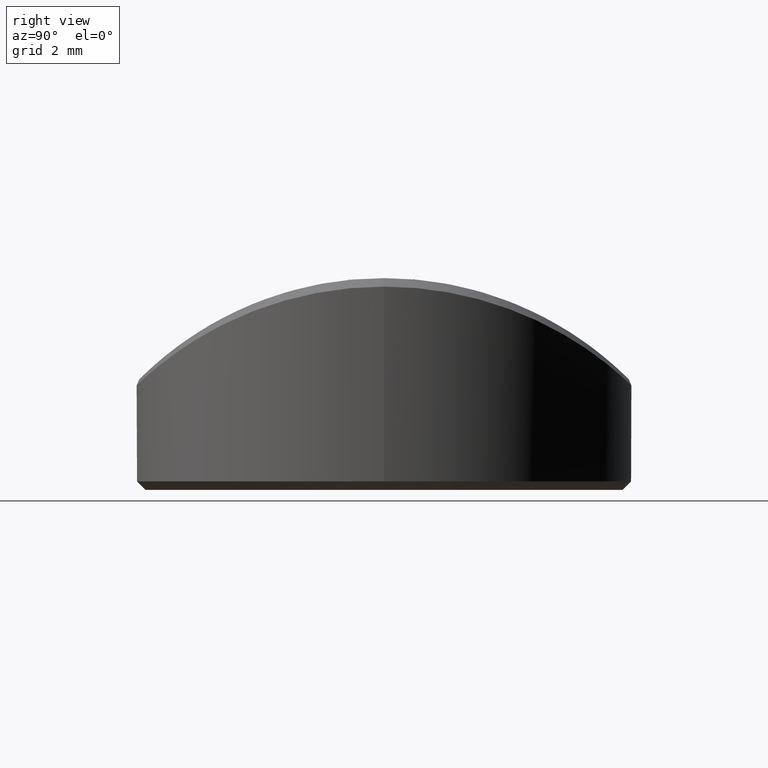
[diagram: clean part render]
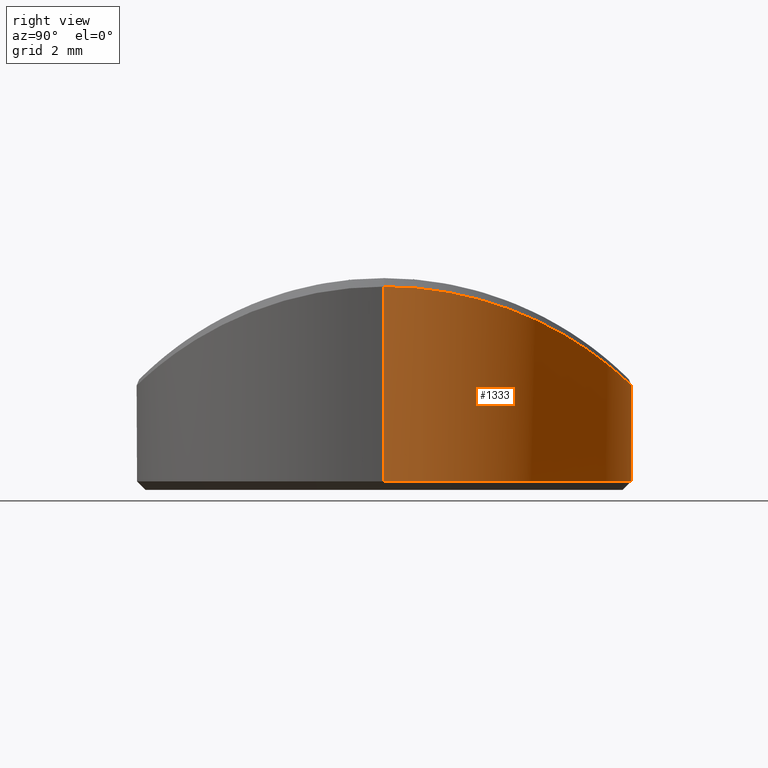
[diagram: same view with one face highlighted and labeled with its STEP entity id]
A machine part, right view. The second image highlights one B-rep face of the part: STEP entity #1333.
In plain terms, the highlighted cylindrical surface (partial cylindrical patch) has radius 5.85 mm, axis along (-0, -0, -1).
Its self-contained STEP definition (entity closure, byte-faithful):
#8 = CARTESIAN_POINT ( 'NONE',  ( 4.108660308784225279, 4.164305027091335987, 3.713260437684034354 ) ) ;
#18 = CARTESIAN_POINT ( 'NONE',  ( 2.385246232320713755, 5.342002398133206320, 2.909686076064244453 ) ) ;
#21 = CARTESIAN_POINT ( 'NONE',  ( 0.000000000000000000, 0.000000000000000000, 0.1999999999999979294 ) ) ;
#31 = CARTESIAN_POINT ( 'NONE',  ( 4.277854823817001773, 3.990310385866837173, 3.808524879976359578 ) ) ;
#35 = DIRECTION ( 'NONE',  ( -0.000000000000000000, -0.000000000000000000, 1.000000000000000000 ) ) ;
#48 = CARTESIAN_POINT ( 'NONE',  ( -4.641185128680093364, 3.561447896373801658, 4.021348622537261441 ) ) ;
#58 = VERTEX_POINT ( 'NONE', #418 ) ;
#59 = CARTESIAN_POINT ( 'NONE',  ( 4.292698634138595537, 3.974337341705630244, 3.817003397133048814 ) ) ;
#62 = CARTESIAN_POINT ( 'NONE',  ( -4.724908983394943363, 3.449390400636082710, 4.071937503099142930 ) ) ;
#71 = CARTESIAN_POINT ( 'NONE',  ( 5.607999183966873247, 1.668178683712018939, 4.636352799101314481 ) ) ;
#75 = CARTESIAN_POINT ( 'NONE',  ( -4.149482428075718765, 4.123658253869851187, 3.736007229230680515 ) ) ;
#96 = CARTESIAN_POINT ( 'NONE',  ( -3.355908233739689273, 4.791754026987987913, 3.322308382126743176 ) ) ;
#107 = CARTESIAN_POINT ( 'NONE',  ( 0.7859525969102898468, 5.797177311696103175, 2.508445793207736418 ) ) ;
#110 = DIRECTION ( 'NONE',  ( -0.000000000000000000, -0.000000000000000000, -1.000000000000000000 ) ) ;
#121 = CARTESIAN_POINT ( 'NONE',  ( -2.992124008550391956, 5.027132031130014056, 3.154572236264746365 ) ) ;
#125 = FACE_OUTER_BOUND ( 'NONE', #1765, .T. ) ;
#134 = CARTESIAN_POINT ( 'NONE',  ( -1.700589119400091942, 5.597579381643957852, 2.691804708332701690 ) ) ;
#146 = CARTESIAN_POINT ( 'NONE',  ( -0.2042860984693528892, 5.849775641191929054, 2.458040373325443007 ) ) ;
#159 = CARTESIAN_POINT ( 'NONE',  ( 0.1915272970174809464, 5.847703814411178591, 2.460045959913346625 ) ) ;
#170 = CARTESIAN_POINT ( 'NONE',  ( 3.880547474902559024, 4.377668838715481847, 3.588936441197635663 ) ) ;
#173 = CARTESIAN_POINT ( 'NONE',  ( -5.850000000000001421, 0.1979065751714237098, 4.800000020053045269 ) ) ;
#182 = CARTESIAN_POINT ( 'NONE',  ( 2.258553373923917196, 5.396476325263996898, 2.864683651766862571 ) ) ;
#185 = CARTESIAN_POINT ( 'NONE',  ( -5.174712363868878562, 2.728635216138851405, 4.352660986688395184 ) ) ;
#197 = CARTESIAN_POINT ( 'NONE',  ( 1.967192620522354440, 5.509377960854479284, 2.769013051855162555 ) ) ;
#200 = CARTESIAN_POINT ( 'NONE',  ( -5.037970731707566152, 2.974943929475019289, 4.265670487847846637 ) ) ;
#206 = CARTESIAN_POINT ( 'NONE',  ( 2.493163070542220972, 5.292183682870229333, 2.950014558453224023 ) ) ;
#208 = CARTESIAN_POINT ( 'NONE',  ( 5.849994100430989441, 0.008308123893104524954, 4.799995968718044459 ) ) ;
#217 = CARTESIAN_POINT ( 'NONE',  ( 3.514693720458985204, 4.676616353762907075, 3.399999438822885356 ) ) ;
#220 = CARTESIAN_POINT ( 'NONE',  ( -5.445365740286342238, 2.138847274481760596, 4.528429422769545631 ) ) ;
#231 = CARTESIAN_POINT ( 'NONE',  ( 5.414727395307071589, 2.216508239495949439, 4.508259288151671207 ) ) ;
#234 = CARTESIAN_POINT ( 'NONE',  ( -3.499138554421866498, 4.688128986937893927, 3.392309389072373893 ) ) ;
#244 = VERTEX_POINT ( 'NONE', #1163 ) ;
#245 = CARTESIAN_POINT ( 'NONE',  ( 5.338461672759514443, 2.392462048441405198, 4.458429455668960983 ) ) ;
#248 = CARTESIAN_POINT ( 'NONE',  ( -4.009158932106791084, 4.260244011897984961, 3.658421650888494803 ) ) ;
#259 = CARTESIAN_POINT ( 'NONE',  ( 5.102490041496828610, 2.861402714286819471, 4.306599639812659142 ) ) ;
#261 = CARTESIAN_POINT ( 'NONE',  ( -4.766340613907120272, 3.392391811443428828, 4.097120868748519662 ) ) ;
#270 = CARTESIAN_POINT ( 'NONE',  ( -4.805933677647351132, 3.335800393674567488, 4.121377632817983638 ) ) ;
#282 = CARTESIAN_POINT ( 'NONE',  ( -3.518896577279808646, 4.673333073556473316, 3.402128751323021394 ) ) ;
#289 = B_SPLINE_CURVE_WITH_KNOTS ( 'NONE', 3,
 ( #2235, #173, #565, #1996, #923, #1628, #354, #1473, #554, #1090, #2208, #1818, #742, #1295, #1077, #2032, #220, #391, #1116, #946, #1675, #1833, #901, #714, #185, #912, #1284, #377, #200, #416, #1157, #1727, #2070, #1687, #270, #261, #62, #613, #1328, #48, #2259, #784, #429, #1913, #1715, #2105, #974, #824, #1143, #1700, #635, #623, #1552, #75, #1542, #2081, #442, #996, #1526, #248, #1365, #797, #1889, #1355, #1342, #1169, #1873, #1180, #1901, #2282, #1513, #463, #813, #962, #1192, #1739, #1925, #987, #2272, #282, #2095, #234, #453, #2246, #1005, #96, #835, #1562, #589, #1316, #2057, #341, #1969, #1979, #2293, #2335, #121, #509, #847, #1400, #1062, #2315, #1423, #1210, #475, #857, #1943, #688, #1051, #294, #887, #865, #315, #1201, #1246, #1934, #328, #1014, #2140, #1792, #646, #1234, #134, #677, #520, #1591, #1390, #1781, #2164, #873, #485, #2129, #498, #146, #1747, #159, #1221, #1379, #1603, #2117, #107, #1759, #668, #2304, #1571, #1581, #657, #302, #1027, #2324, #1039, #1957, #1770, #1410, #2152, #352, #1280, #197, #400, #726, #1074, #1458, #1292, #182, #1268, #18, #1660, #206, #909, #752, #374, #1828, #575, #2029, #1854, #1113, #2373, #387, #1842, #2359, #1815, #931, #921, #1483, #2217, #1470, #1302, #2018, #2041, #1125, #711, #2194, #1803, #899, #217, #2347, #1433, #700, #1258, #2205, #2173, #362, #530, #562, #2183, #1993, #170, #1626, #1099, #1446, #540, #2005, #1087, #551, #1647, #8, #739, #1908, #1885, #1711, #31, #59, #2268, #631, #1510, #765, #1548, #1361, #619, #2101, #943, #992, #1154, #1538, #1869, #794, #459, #1723, #1351, #1684, #1523, #1188, #2232, #259, #1671, #610, #1314, #1496, #1167, #245, #1140, #1898, #231, #1339, #2079, #1921, #984, #2090, #71, #809, #2278, #958, #2256, #586, #1176 ),
 .UNSPECIFIED., .F., .F.,
 ( 4, 2, 1, 2, 2, 1, 1, 2, 2, 1, 1, 2, 2, 2, 1, 2, 2, 2, 1, 2, 2, 1, 2, 2, 1, 2, 2, 1, 1, 2, 2, 1, 1, 1, 2, 2, 2, 1, 1, 2, 2, 1, 2, 2, 1, 2, 2, 2, 1, 1, 2, 2, 2, 1, 2, 2, 1, 1, 2, 2, 1, 1, 2, 2, 1, 2, 2, 1, 2, 2, 1, 2, 2, 1, 2, 2, 2, 2, 2, 2, 2, 2, 2, 2, 2, 2, 2, 2, 2, 2, 2, 2, 1, 2, 2, 1, 2, 2, 1, 2, 2, 1, 2, 2, 1, 1, 2, 2, 1, 1, 2, 2, 2, 1, 1, 2, 2, 2, 1, 1, 2, 2, 2, 1, 2, 2, 2, 1, 1, 2, 2, 1, 1, 2, 2, 1, 2, 2, 1, 2, 2, 1, 2, 2, 2, 1, 2, 2, 2, 1, 2, 2, 1, 1, 2, 2, 2, 2, 4 ),
 ( 0.000000000000000000, 0.01562500000000116920, 0.02343750000000174860, 0.02734375000000204003, 0.03125000000000232453, 0.03906250000000289352, 0.04296875000000317107, 0.04492187500000330985, 0.04687500000000344863, 0.05468750000000395517, 0.05859375000000419803, 0.06054687500000433681, 0.06250000000000446865, 0.07031250000000502376, 0.07421875000000525968, 0.07617187500000539846, 0.07812500000000552336, 0.08593750000000600908, 0.08984375000000627276, 0.09179687500000641154, 0.09375000000000653644, 0.09765625000000684175, 0.09960937500000695277, 0.1015625000000070777, 0.1054687500000073275, 0.1074218750000074385, 0.1093750000000075634, 0.1132812500000077438, 0.1152343750000078271, 0.1162109375000078687, 0.1171875000000078965, 0.1210937500000079242, 0.1230468750000079520, 0.1240234375000079797, 0.1245117187500079797, 0.1250000000000079936, 0.1289062500000080214, 0.1308593750000080214, 0.1318359375000080214, 0.1323242187500080214, 0.1328125000000079936, 0.1347656250000078548, 0.1357421875000077993, 0.1367187500000077438, 0.1386718750000076605, 0.1396484375000076050, 0.1406250000000075773, 0.1445312500000073830, 0.1464843750000072442, 0.1474609375000071887, 0.1479492187500071332, 0.1484375000000070777, 0.1523437500000068001, 0.1542968750000066336, 0.1552734375000065781, 0.1562500000000064948, 0.1601562500000061617, 0.1621093750000059952, 0.1630859375000059119, 0.1640625000000058009, 0.1679687500000055511, 0.1699218750000054123, 0.1708984375000053568, 0.1718750000000052736, 0.1757812500000051625, 0.1777343750000051070, 0.1796875000000050515, 0.1835937500000049960, 0.1855468750000049127, 0.1875000000000048295, 0.1914062500000046629, 0.1933593750000046074, 0.1953125000000045797, 0.1992187500000044409, 0.2011718750000043854, 0.2031250000000043576, 0.2070312500000042188, 0.2109375000000041078, 0.2148437500000039690, 0.2187500000000038580, 0.2343750000000032752, 0.2500000000000026645, 0.2578125000000024425, 0.2656250000000021094, 0.2695312500000019429, 0.2734375000000018319, 0.2773437500000016653, 0.2812500000000014988, 0.2851562500000013323, 0.2890625000000012212, 0.2929687500000010547, 0.2968750000000008882, 0.3007812500000007216, 0.3027343750000006661, 0.3046875000000006106, 0.3085937500000004441, 0.3105468750000003331, 0.3125000000000001665, 0.3164062499999998890, 0.3183593749999997224, 0.3203124999999996114, 0.3242187499999993339, 0.3261718749999992228, 0.3281249999999990563, 0.3320312499999988343, 0.3339843749999986677, 0.3349609374999986122, 0.3359374999999985012, 0.3398437499999981681, 0.3417968749999980016, 0.3427734374999978906, 0.3437499999999977796, 0.3476562499999975575, 0.3496093749999974465, 0.3505859374999974465, 0.3510742187499973910, 0.3515624999999973910, 0.3554687499999971689, 0.3574218749999971134, 0.3583984374999970579, 0.3588867187499970579, 0.3593749999999970024, 0.3632812499999970579, 0.3652343749999970024, 0.3662109374999970579, 0.3671874999999970579, 0.3710937499999970579, 0.3730468749999970579, 0.3740234374999970024, 0.3745117187499970024, 0.3749999999999969469, 0.3789062499999970024, 0.3808593749999969469, 0.3818359374999969469, 0.3828124999999968914, 0.3867187499999969469, 0.3886718749999970024, 0.3906249999999970579, 0.3945312499999971134, 0.3964843749999970579, 0.3984374999999970579, 0.4023437499999970579, 0.4042968749999971134, 0.4062499999999971689, 0.4140624999999972800, 0.4179687499999973355, 0.4199218749999973910, 0.4218749999999974465, 0.4296874999999976130, 0.4335937499999977240, 0.4355468749999978351, 0.4374999999999979461, 0.4453124999999981681, 0.4492187499999983347, 0.4511718749999983902, 0.4531249999999985012, 0.4609374999999987232, 0.4687499999999990008, 0.5000000000000000000 ),
 .UNSPECIFIED. ) ;
#294 = CARTESIAN_POINT ( 'NONE',  ( -2.367909789877626903, 5.349396769338415680, 2.903558326850978144 ) ) ;
#302 = CARTESIAN_POINT ( 'NONE',  ( 1.270178043569939907, 5.710649705903003692, 2.589440278912006566 ) ) ;
#304 = VECTOR ( 'NONE', #110, 1000.000000000000000 ) ;
#315 = CARTESIAN_POINT ( 'NONE',  ( -2.238142779689996864, 5.405143694360121209, 2.857499906197123796 ) ) ;
#328 = CARTESIAN_POINT ( 'NONE',  ( -2.041159729408877688, 5.482404539894076834, 2.792189951830281291 ) ) ;
#341 = CARTESIAN_POINT ( 'NONE',  ( -3.166305068345255602, 4.919420037969555182, 3.232947271467960348 ) ) ;
#352 = CARTESIAN_POINT ( 'NONE',  ( 1.852630553815709069, 5.549264105393111990, 2.734416956072977190 ) ) ;
#354 = CARTESIAN_POINT ( 'NONE',  ( -5.749070987448257064, 1.083120220196605699, 4.731328615649891489 ) ) ;
#362 = CARTESIAN_POINT ( 'NONE',  ( 3.700040238052300090, 4.531251011624844338, 3.494071232220225198 ) ) ;
#374 = CARTESIAN_POINT ( 'NONE',  ( 2.638567562701895852, 5.221520374164146716, 3.006316252501083586 ) ) ;
#377 = CARTESIAN_POINT ( 'NONE',  ( -5.084452674447749843, 2.894668681140734723, 4.295090895718870705 ) ) ;
#387 = CARTESIAN_POINT ( 'NONE',  ( 2.985148355988853641, 5.031056767375082117, 3.151595296041863392 ) ) ;
#391 = CARTESIAN_POINT ( 'NONE',  ( -5.417824337821196323, 2.206871201970566965, 4.510337176758723920 ) ) ;
#400 = CARTESIAN_POINT ( 'NONE',  ( 1.991478015453728601, 5.500641401580073087, 2.776541590890383659 ) ) ;
#416 = CARTESIAN_POINT ( 'NONE',  ( -4.963889419142518911, 3.095890332972166092, 4.219214475236194417 ) ) ;
#418 = CARTESIAN_POINT ( 'NONE',  ( 5.849999999999999645, 7.164183775012015436E-16, 0.1999999999999979294 ) ) ;
#426 = ORIENTED_EDGE ( 'NONE', *, *, #1085, .T. ) ;
#429 = CARTESIAN_POINT ( 'NONE',  ( -4.525538455941270577, 3.707095868551213869, 3.952436066602554199 ) ) ;
#442 = CARTESIAN_POINT ( 'NONE',  ( -4.122525601592142763, 4.150579220939602187, 3.720971565749842114 ) ) ;
#453 = CARTESIAN_POINT ( 'NONE',  ( -3.496459238728092611, 4.690129234442699691, 3.390979754978672212 ) ) ;
#459 = CARTESIAN_POINT ( 'NONE',  ( 4.800533027938688413, 3.343338700104062422, 4.118083086083847100 ) ) ;
#463 = CARTESIAN_POINT ( 'NONE',  ( -3.770137706932647159, 4.473196235276285293, 3.530509703383662767 ) ) ;
#475 = CARTESIAN_POINT ( 'NONE',  ( -2.623522161279021159, 5.228782137833787758, 3.000511269317742258 ) ) ;
#485 = CARTESIAN_POINT ( 'NONE',  ( -0.9884755304512253815, 5.769356773961141549, 2.534990746851388810 ) ) ;
#488 = LINE ( 'NONE', #1749, #304 ) ;
#498 = CARTESIAN_POINT ( 'NONE',  ( -0.4006717094098667942, 5.839629473870818543, 2.467896926421356607 ) ) ;
#509 = CARTESIAN_POINT ( 'NONE',  ( -2.930704423171006656, 5.063320948246997411, 3.127691112935433004 ) ) ;
#520 = CARTESIAN_POINT ( 'NONE',  ( -1.561445824873080923, 5.637970051799042537, 2.655678913057720969 ) ) ;
#530 = CARTESIAN_POINT ( 'NONE',  ( 3.740352206442948635, 4.498267328586126546, 3.514917748246081164 ) ) ;
#540 = CARTESIAN_POINT ( 'NONE',  ( 3.989716235322790627, 4.278642813904538933, 3.647776917371431171 ) ) ;
#542 = CARTESIAN_POINT ( 'NONE',  ( 5.849999999999999645, 0.001384732242605513650, 4.800000032874744527 ) ) ;
#551 = CARTESIAN_POINT ( 'NONE',  ( 4.090418222519025981, 4.182244113535948493, 3.703137407503230616 ) ) ;
#554 = CARTESIAN_POINT ( 'NONE',  ( -5.709933780182978147, 1.276182818035777045, 4.704859354296758056 ) ) ;
#562 = CARTESIAN_POINT ( 'NONE',  ( 3.775931926047144227, 4.468441574705442676, 3.533502779599761112 ) ) ;
#565 = CARTESIAN_POINT ( 'NONE',  ( -5.839723026759162217, 0.3984697431334746631, 4.792967830436789534 ) ) ;
#575 = CARTESIAN_POINT ( 'NONE',  ( 2.743153069711860681, 5.167027549495465166, 3.048725450084714517 ) ) ;
#586 = CARTESIAN_POINT ( 'NONE',  ( 5.849424353533917653, 0.4094836515437358937, 4.799604329616459886 ) ) ;
#589 = CARTESIAN_POINT ( 'NONE',  ( -3.283989558078792115, 4.841283532423788394, 3.288009601409264349 ) ) ;
#610 = CARTESIAN_POINT ( 'NONE',  ( 5.171888964532689315, 2.735627483672812055, 4.350782014976083190 ) ) ;
#613 = CARTESIAN_POINT ( 'NONE',  ( -4.696872241992214647, 3.487470455755807386, 4.054942681204020793 ) ) ;
#619 = CARTESIAN_POINT ( 'NONE',  ( 4.520246793030689325, 3.713780340347116571, 3.949278532602388925 ) ) ;
#623 = CARTESIAN_POINT ( 'NONE',  ( -4.236900958572777043, 4.034225483150188474, 3.785154077466050815 ) ) ;
#631 = CARTESIAN_POINT ( 'NONE',  ( 4.339927709825651903, 3.922990726935919881, 3.844062004190583970 ) ) ;
#635 = CARTESIAN_POINT ( 'NONE',  ( -4.282821258505214779, 3.985198049452571833, 3.811326572014898328 ) ) ;
#646 = CARTESIAN_POINT ( 'NONE',  ( -1.791999179882435955, 5.568823608238111511, 2.717206732717299733 ) ) ;
#657 = CARTESIAN_POINT ( 'NONE',  ( 1.222921563481783602, 5.720949971986604154, 2.579918340717967773 ) ) ;
#668 = CARTESIAN_POINT ( 'NONE',  ( 0.9333466196987866281, 5.775269120047830995, 2.529175282938312730 ) ) ;
#670 = DIRECTION ( 'NONE',  ( -0.000000000000000000, -0.000000000000000000, -1.000000000000000000 ) ) ;
#677 = CARTESIAN_POINT ( 'NONE',  ( -1.654056503630335850, 5.611498592336513269, 2.679406669990118228 ) ) ;
#688 = CARTESIAN_POINT ( 'NONE',  ( -2.497490675194720122, 5.290313134918473992, 2.951562525945455207 ) ) ;
#691 = CARTESIAN_POINT ( 'NONE',  ( 5.849999999999999645, 7.164183775012015436E-16, 6.000000000000000000 ) ) ;
#700 = CARTESIAN_POINT ( 'NONE',  ( 3.631251653494001808, 4.586684649118374146, 3.458735751752840759 ) ) ;
#711 = CARTESIAN_POINT ( 'NONE',  ( 3.450353842871155319, 4.724174734588348912, 3.368222563017964966 ) ) ;
#714 = CARTESIAN_POINT ( 'NONE',  ( -5.208690313222922974, 2.663866880351671185, 4.374429203261561483 ) ) ;
#726 = CARTESIAN_POINT ( 'NONE',  ( 2.056964297734269920, 5.476637648876888420, 2.797144341914527654 ) ) ;
#739 = CARTESIAN_POINT ( 'NONE',  ( 4.111426422354355736, 4.161575491123386428, 3.714797190299222063 ) ) ;
#742 = CARTESIAN_POINT ( 'NONE',  ( -5.595913240151583423, 1.705542039991582826, 4.628300560627542026 ) ) ;
#752 = CARTESIAN_POINT ( 'NONE',  ( 2.577139662853601632, 5.251938738485253388, 2.982220288086812054 ) ) ;
#765 = CARTESIAN_POINT ( 'NONE',  ( 4.431848770665726356, 3.818602226891935736, 3.897390977628542252 ) ) ;
#784 = CARTESIAN_POINT ( 'NONE',  ( -4.555331066495266867, 3.670424630673658317, 3.970090464406842656 ) ) ;
#794 = CARTESIAN_POINT ( 'NONE',  ( 4.774044917264575361, 3.381053998960090290, 4.101870093479646151 ) ) ;
#797 = CARTESIAN_POINT ( 'NONE',  ( -3.950816203068046928, 4.314375341775089190, 3.626709682980445493 ) ) ;
#803 = VECTOR ( 'NONE', #670, 1000.000000000000000 ) ;
#809 = CARTESIAN_POINT ( 'NONE',  ( 5.635491040033320687, 1.572731845709953724, 4.654766756808739636 ) ) ;
#813 = CARTESIAN_POINT ( 'NONE',  ( -3.743689945445724199, 4.495266113549601705, 3.516719144153476417 ) ) ;
#824 = CARTESIAN_POINT ( 'NONE',  ( -4.344421198128587847, 3.917735122489244048, 3.846693809049925417 ) ) ;
#835 = CARTESIAN_POINT ( 'NONE',  ( -3.328336126217804836, 4.810977964637010551, 3.309075465715567876 ) ) ;
#847 = CARTESIAN_POINT ( 'NONE',  ( -2.860795341911956502, 5.102866526086918597, 3.097836636850413772 ) ) ;
#857 = CARTESIAN_POINT ( 'NONE',  ( -2.582241689582123190, 5.249291288568000091, 2.984287996357591233 ) ) ;
#865 = CARTESIAN_POINT ( 'NONE',  ( -2.305255751994943925, 5.376698455616986116, 2.881087241991213244 ) ) ;
#873 = CARTESIAN_POINT ( 'NONE',  ( -1.233485358215967054, 5.718698952759169174, 2.582003134186151794 ) ) ;
#887 = CARTESIAN_POINT ( 'NONE',  ( -2.325235702580476183, 5.368083596242859024, 2.888198953795840573 ) ) ;
#898 = ORIENTED_EDGE ( 'NONE', *, *, #1914, .T. ) ;
#899 = CARTESIAN_POINT ( 'NONE',  ( 3.481961696564017217, 4.700900259629834821, 3.383804601954065738 ) ) ;
#901 = CARTESIAN_POINT ( 'NONE',  ( -5.241133174277854856, 2.599100720565531208, 4.395328712143412808 ) ) ;
#909 = CARTESIAN_POINT ( 'NONE',  ( 2.516551506082875811, 5.281095611319286398, 2.958918179046604813 ) ) ;
#912 = CARTESIAN_POINT ( 'NONE',  ( -5.151715851118652267, 2.771808431487169155, 4.337955796152659360 ) ) ;
#921 = CARTESIAN_POINT ( 'NONE',  ( 3.189016169334133455, 4.904454316318628493, 3.243533301852643991 ) ) ;
#923 = CARTESIAN_POINT ( 'NONE',  ( -5.791059762069528105, 0.8386265584953898067, 4.759809586297070183 ) ) ;
#931 = CARTESIAN_POINT ( 'NONE',  ( 3.120080078275920155, 4.948873857063324166, 3.211793157026503476 ) ) ;
#943 = CARTESIAN_POINT ( 'NONE',  ( 4.607439575516886876, 3.604791104210648633, 4.001143537599368472 ) ) ;
#946 = CARTESIAN_POINT ( 'NONE',  ( -5.389132940618789114, 2.276025438106015653, 4.491525271946784414 ) ) ;
#958 = CARTESIAN_POINT ( 'NONE',  ( 5.707292504726225957, 1.288111709715911379, 4.703073855548920434 ) ) ;
#962 = CARTESIAN_POINT ( 'NONE',  ( -3.726014939985977659, 4.509927328268167557, 3.507525099721356732 ) ) ;
#971 = CARTESIAN_POINT ( 'NONE',  ( -5.850000000000002309, 3.388131789017201356E-18, 4.800000000000000711 ) ) ;
#974 = CARTESIAN_POINT ( 'NONE',  ( -4.368368266830685798, 3.891124162856460345, 3.860501241730360356 ) ) ;
#984 = CARTESIAN_POINT ( 'NONE',  ( 5.563426692696540776, 1.808687964311094687, 4.606632237335720248 ) ) ;
#987 = CARTESIAN_POINT ( 'NONE',  ( -3.573745572181513896, 4.631562204752075473, 3.429601908578863156 ) ) ;
#992 = CARTESIAN_POINT ( 'NONE',  ( 4.635358086503948094, 3.568819658783270565, 4.017870360145804121 ) ) ;
#996 = CARTESIAN_POINT ( 'NONE',  ( -4.090440080980044968, 4.182393222656126675, 3.703117736185754794 ) ) ;
#1005 = CARTESIAN_POINT ( 'NONE',  ( -3.412149060353349306, 4.752035953533973789, 3.349472330040141888 ) ) ;
#1014 = CARTESIAN_POINT ( 'NONE',  ( -1.972614890601700699, 5.507600277200893402, 2.770576496580917869 ) ) ;
#1017 = B_SPLINE_CURVE_WITH_KNOTS ( 'NONE', 3,
 ( #208, #2008, #1102, #542, #1499 ),
 .UNSPECIFIED., .F., .F.,
 ( 4, 1, 4 ),
 ( 0.5000000000000000000, 0.5001078581745684870, 0.5002157163491369740 ),
 .UNSPECIFIED. ) ;
#1027 = CARTESIAN_POINT ( 'NONE',  ( 1.365087987922044110, 5.688708738468523762, 2.609604033327660222 ) ) ;
#1030 = CARTESIAN_POINT ( 'NONE',  ( -5.849999999999999645, 0.000000000000000000, 0.1999999999999979294 ) ) ;
#1039 = CARTESIAN_POINT ( 'NONE',  ( 1.506580188237756746, 5.652873038858921895, 2.642222491508874338 ) ) ;
#1051 = CARTESIAN_POINT ( 'NONE',  ( -2.432239995582672787, 5.320771167998423756, 2.926982602419497592 ) ) ;
#1062 = CARTESIAN_POINT ( 'NONE',  ( -2.811594395190170292, 5.130064567111890739, 3.077121920263955257 ) ) ;
#1064 = CYLINDRICAL_SURFACE ( 'NONE', #1527, 5.849999999999999645 ) ;
#1074 = CARTESIAN_POINT ( 'NONE',  ( 2.123017297743609255, 5.451540607635421587, 2.818526518139031545 ) ) ;
#1077 = CARTESIAN_POINT ( 'NONE',  ( -5.552647062902815733, 1.843811274995935223, 4.599434344876035752 ) ) ;
#1085 = EDGE_CURVE ( 'NONE', #1139, #58, #1248, .T. ) ;
#1087 = CARTESIAN_POINT ( 'NONE',  ( 4.063955288049902137, 4.208036028649212668, 3.688496538388607693 ) ) ;
#1090 = CARTESIAN_POINT ( 'NONE',  ( -5.676689593266848632, 1.419415368109408160, 4.682425545840869674 ) ) ;
#1099 = CARTESIAN_POINT ( 'NONE',  ( 3.905273017292389071, 4.355629986696197165, 3.602174125696615992 ) ) ;
#1102 = CARTESIAN_POINT ( 'NONE',  ( 5.849999016675146102, 0.004154152266178570002, 4.799999350280018895 ) ) ;
#1113 = CARTESIAN_POINT ( 'NONE',  ( 2.883633714727789954, 5.090277371919099458, 3.107438580196582478 ) ) ;
#1116 = CARTESIAN_POINT ( 'NONE',  ( -5.399137022386495843, 2.252203470175413003, 4.498078484468649663 ) ) ;
#1125 = CARTESIAN_POINT ( 'NONE',  ( 3.415737165791563612, 4.749344047829870519, 3.351261467338617628 ) ) ;
#1139 = VERTEX_POINT ( 'NONE', #1606 ) ;
#1140 = CARTESIAN_POINT ( 'NONE',  ( 5.357432376098810956, 2.349673598669190344, 4.470800784022671337 ) ) ;
#1143 = CARTESIAN_POINT ( 'NONE',  ( -4.328309886613762814, 3.935527609123888659, 3.837421094897967677 ) ) ;
#1154 = CARTESIAN_POINT ( 'NONE',  ( 4.648127165366481073, 3.552180775882840980, 4.025540923842574337 ) ) ;
#1157 = CARTESIAN_POINT ( 'NONE',  ( -4.925759341345829156, 3.156496357863600721, 4.195405118729093275 ) ) ;
#1163 = CARTESIAN_POINT ( 'NONE',  ( 5.849994100430989441, 0.008308123893104524954, 4.799995968718044459 ) ) ;
#1167 = CARTESIAN_POINT ( 'NONE',  ( 5.309526378384600065, 2.456686213279514863, 4.439586414329719233 ) ) ;
#1169 = CARTESIAN_POINT ( 'NONE',  ( -3.903275894344365948, 4.357441912563019493, 3.601097521693248371 ) ) ;
#1176 = CARTESIAN_POINT ( 'NONE',  ( 5.849994100430989441, 0.008308123893104524954, 4.799995968718044459 ) ) ;
#1180 = CARTESIAN_POINT ( 'NONE',  ( -3.852694095755904158, 4.402204489130290277, 3.574088763796989809 ) ) ;
#1188 = CARTESIAN_POINT ( 'NONE',  ( 5.045263047043333948, 2.961687848845372173, 4.270327962350921602 ) ) ;
#1192 = CARTESIAN_POINT ( 'NONE',  ( -3.718613853917212442, 4.516036945050367457, 3.503682701072806882 ) ) ;
#1201 = CARTESIAN_POINT ( 'NONE',  ( -2.171485041671623595, 5.432409617487095055, 2.834676322052658737 ) ) ;
#1205 = VERTEX_POINT ( 'NONE', #1030 ) ;
#1210 = CARTESIAN_POINT ( 'NONE',  ( -2.685841726119805539, 5.197363973011893457, 3.025244218304368626 ) ) ;
#1220 = AXIS2_PLACEMENT_3D ( 'NONE', #21, #35, #1448 ) ;
#1221 = CARTESIAN_POINT ( 'NONE',  ( 0.3895008547021287515, 5.837860197946517893, 2.469538705158260239 ) ) ;
#1234 = CARTESIAN_POINT ( 'NONE',  ( -1.770694256463475336, 5.575638207580735362, 2.711203005661155796 ) ) ;
#1246 = CARTESIAN_POINT ( 'NONE',  ( -2.105577315306549124, 5.457984297132015605, 2.812998365382632482 ) ) ;
#1248 = LINE ( 'NONE', #691, #803 ) ;
#1258 = CARTESIAN_POINT ( 'NONE',  ( 3.667135215819106175, 4.557953241849640236, 3.477116639209918869 ) ) ;
#1268 = CARTESIAN_POINT ( 'NONE',  ( 2.321560787985991858, 5.369817110077165445, 2.886799437259939705 ) ) ;
#1280 = CARTESIAN_POINT ( 'NONE',  ( 1.921284164007314610, 5.525555128936945337, 2.755015275143127607 ) ) ;
#1284 = CARTESIAN_POINT ( 'NONE',  ( -5.139137854094647295, 2.795045389144636072, 4.329928571553390171 ) ) ;
#1292 = CARTESIAN_POINT ( 'NONE',  ( 2.234582749667360702, 5.406452025023538610, 2.856371849914226768 ) ) ;
#1295 = CARTESIAN_POINT ( 'NONE',  ( -5.588243339000471543, 1.730491468644730579, 4.623179252367941139 ) ) ;
#1302 = CARTESIAN_POINT ( 'NONE',  ( 3.294161972284742390, 4.834535063252617171, 3.292767071695796854 ) ) ;
#1314 = CARTESIAN_POINT ( 'NONE',  ( 5.216374461049740674, 2.649726712828589736, 4.379338655799194235 ) ) ;
#1316 = CARTESIAN_POINT ( 'NONE',  ( -3.276819974075586561, 4.846142900949145904, 3.284618346278699530 ) ) ;
#1328 = CARTESIAN_POINT ( 'NONE',  ( -4.681720169721216074, 3.507776914477629404, 4.045784176904761331 ) ) ;
#1333 = ADVANCED_FACE ( 'NONE', ( #125 ), #1064, .T. ) ;
#1337 = ORIENTED_EDGE ( 'NONE', *, *, #2305, .T. ) ;
#1339 = CARTESIAN_POINT ( 'NONE',  ( 5.468999333493193227, 2.080592491471184857, 4.543962867421093677 ) ) ;
#1342 = CARTESIAN_POINT ( 'NONE',  ( -3.920956768915446755, 4.341499819974869112, 3.610606440955517193 ) ) ;
#1351 = CARTESIAN_POINT ( 'NONE',  ( 4.882080033572769651, 3.224514625273130264, 4.168220617781161152 ) ) ;
#1355 = CARTESIAN_POINT ( 'NONE',  ( -3.927089203132765771, 4.335955708229942474, 3.613907788982232194 ) ) ;
#1361 = CARTESIAN_POINT ( 'NONE',  ( 4.474171550538985187, 3.768933908668445909, 3.922166853953529930 ) ) ;
#1365 = CARTESIAN_POINT ( 'NONE',  ( -3.983034121360975011, 4.284741509703273721, 3.644165546991937177 ) ) ;
#1374 = CIRCLE ( 'NONE', #1220, 5.849999999999999645 ) ;
#1379 = CARTESIAN_POINT ( 'NONE',  ( 0.4900649977642773658, 5.830276105366219319, 2.476846774740415036 ) ) ;
#1390 = CARTESIAN_POINT ( 'NONE',  ( -1.421673612950243859, 5.674838280402457080, 2.622278499644778549 ) ) ;
#1400 = CARTESIAN_POINT ( 'NONE',  ( -2.831222176621669195, 5.119258392815055458, 3.085364754485229621 ) ) ;
#1406 = EDGE_CURVE ( 'NONE', #2358, #1205, #488, .T. ) ;
#1410 = CARTESIAN_POINT ( 'NONE',  ( 1.694607441142016224, 5.599377500427547005, 2.690204889555660284 ) ) ;
#1423 = CARTESIAN_POINT ( 'NONE',  ( -2.749314017131531784, 5.163927089063830245, 3.051171285930200483 ) ) ;
#1433 = CARTESIAN_POINT ( 'NONE',  ( 3.602467705411893206, 4.609258238005945252, 3.444124971933190782 ) ) ;
#1446 = CARTESIAN_POINT ( 'NONE',  ( 3.953703349022318125, 4.312012123999124924, 3.628209106112036064 ) ) ;
#1448 = DIRECTION ( 'NONE',  ( 1.000000000000000000, 0.000000000000000000, 0.000000000000000000 ) ) ;
#1458 = CARTESIAN_POINT ( 'NONE',  ( 2.189856351519454236, 5.424722363743782694, 2.841077832164075723 ) ) ;
#1470 = CARTESIAN_POINT ( 'NONE',  ( 3.250959512044595101, 4.863524496148690979, 3.272440366783609278 ) ) ;
#1473 = CARTESIAN_POINT ( 'NONE',  ( -5.739422619427256400, 1.133092928840288671, 4.724796793772453540 ) ) ;
#1483 = CARTESIAN_POINT ( 'NONE',  ( 3.219092798085421148, 4.884678883403077876, 3.257532304984751992 ) ) ;
#1496 = CARTESIAN_POINT ( 'NONE',  ( 5.279136605555579287, 2.521010758113789052, 4.419885226564446157 ) ) ;
#1499 = CARTESIAN_POINT ( 'NONE',  ( 5.849999999768836112, 1.100001536417089305E-14, 4.800000018381221700 ) ) ;
#1510 = CARTESIAN_POINT ( 'NONE',  ( 4.387151265814201118, 3.870283658480446753, 3.871328641592497455 ) ) ;
#1513 = CARTESIAN_POINT ( 'NONE',  ( -3.796389850174158198, 4.450893333088417947, 3.544298740359873801 ) ) ;
#1523 = CARTESIAN_POINT ( 'NONE',  ( 5.009122307145581487, 3.022158532373302009, 4.247572810882275007 ) ) ;
#1526 = CARTESIAN_POINT ( 'NONE',  ( -4.059474422542122873, 4.212517649570565403, 3.685992438340075950 ) ) ;
#1527 = AXIS2_PLACEMENT_3D ( 'NONE', #1795, #2175, #1935 ) ;
#1538 = CARTESIAN_POINT ( 'NONE',  ( 4.691551149675015076, 3.494874167958102795, 4.051698977976965210 ) ) ;
#1542 = CARTESIAN_POINT ( 'NONE',  ( -4.136476569330127973, 4.136677354249838956, 3.728747323570280159 ) ) ;
#1548 = CARTESIAN_POINT ( 'NONE',  ( 4.461098075133329566, 3.784390367987571224, 3.914498245793491371 ) ) ;
#1552 = CARTESIAN_POINT ( 'NONE',  ( -4.179308369741985274, 4.093518829348949950, 3.752708081763889147 ) ) ;
#1562 = CARTESIAN_POINT ( 'NONE',  ( -3.301613282869491517, 4.829281870968812562, 3.296366135622681881 ) ) ;
#1571 = CARTESIAN_POINT ( 'NONE',  ( 1.078534384727335871, 5.749929210918788058, 2.552964165952388065 ) ) ;
#1581 = CARTESIAN_POINT ( 'NONE',  ( 1.128845568902918650, 5.740253776094791149, 2.561994342357464927 ) ) ;
#1591 = CARTESIAN_POINT ( 'NONE',  ( -1.517403653549612930, 5.649993940056427633, 2.644828771864184525 ) ) ;
#1603 = CARTESIAN_POINT ( 'NONE',  ( 0.6376772690277779931, 5.815351536431376367, 2.491129237831279930 ) ) ;
#1606 = CARTESIAN_POINT ( 'NONE',  ( 5.849999999768836112, 1.100001536417089305E-14, 4.800000018381221700 ) ) ;
#1625 = EDGE_CURVE ( 'NONE', #58, #1205, #1374, .T. ) ;
#1626 = CARTESIAN_POINT ( 'NONE',  ( 3.897788085958142190, 4.362325206056508087, 3.598161271984959608 ) ) ;
#1628 = CARTESIAN_POINT ( 'NONE',  ( -5.766631871147450461, 0.9853545010728285147, 4.743231074416516257 ) ) ;
#1647 = CARTESIAN_POINT ( 'NONE',  ( 4.101409797457376882, 4.171446219832841251, 3.709234853856831382 ) ) ;
#1660 = CARTESIAN_POINT ( 'NONE',  ( 2.449875718469864072, 5.312360981108604996, 2.933728994835387738 ) ) ;
#1671 = CARTESIAN_POINT ( 'NONE',  ( 5.112841036494422120, 2.842878138430964263, 4.313179221889350323 ) ) ;
#1675 = CARTESIAN_POINT ( 'NONE',  ( -5.343263143769233281, 2.383436452169129804, 4.461518910984331399 ) ) ;
#1684 = CARTESIAN_POINT ( 'NONE',  ( 4.934650015493380337, 3.143361760210249045, 4.200895278543111289 ) ) ;
#1687 = CARTESIAN_POINT ( 'NONE',  ( -4.844344240799318690, 3.279534200420934908, 4.145016662500833782 ) ) ;
#1700 = CARTESIAN_POINT ( 'NONE',  ( -4.319267051784687617, 3.945446549437877870, 3.832226784744405812 ) ) ;
#1711 = CARTESIAN_POINT ( 'NONE',  ( 4.255318958922309491, 4.014426320984538776, 3.795674190822735827 ) ) ;
#1715 = CARTESIAN_POINT ( 'NONE',  ( -4.466756757983527670, 3.777900934972624469, 3.917792486324617407 ) ) ;
#1723 = CARTESIAN_POINT ( 'NONE',  ( 4.812511434664550336, 3.326084776828244660, 4.125431909492253801 ) ) ;
#1727 = CARTESIAN_POINT ( 'NONE',  ( -4.885948698155101688, 3.217234341972858402, 4.170723736920071367 ) ) ;
#1739 = CARTESIAN_POINT ( 'NONE',  ( -3.666921289450011834, 4.558404018366149835, 3.476921935065000913 ) ) ;
#1747 = CARTESIAN_POINT ( 'NONE',  ( 0.09234933533605341194, 5.850106714055783641, 2.457717843359179088 ) ) ;
#1749 = CARTESIAN_POINT ( 'NONE',  ( -5.849999999999999645, 0.000000000000000000, 6.000000000000000000 ) ) ;
#1759 = CARTESIAN_POINT ( 'NONE',  ( 0.8371163082952962631, 5.790000484271759618, 2.515255045997970118 ) ) ;
#1765 = EDGE_LOOP ( 'NONE', ( #1337, #898, #426, #1814, #2054 ) ) ;
#1770 = CARTESIAN_POINT ( 'NONE',  ( 1.645884661021541850, 5.613902581243422674, 2.677260633825729652 ) ) ;
#1781 = CARTESIAN_POINT ( 'NONE',  ( -1.373972515994825283, 5.686570114827556921, 2.611561516670319882 ) ) ;
#1792 = CARTESIAN_POINT ( 'NONE',  ( -1.836890805206702115, 5.554177671817543072, 2.730064387683049265 ) ) ;
#1795 = CARTESIAN_POINT ( 'NONE',  ( 0.000000000000000000, 0.000000000000000000, 6.000000000000000000 ) ) ;
#1803 = CARTESIAN_POINT ( 'NONE',  ( 3.475462009429053811, 4.705709610556046307, 3.380592855745488290 ) ) ;
#1814 = ORIENTED_EDGE ( 'NONE', *, *, #1625, .T. ) ;
#1815 = CARTESIAN_POINT ( 'NONE',  ( 3.063202879613114327, 4.984089119491375897, 3.186171654287722532 ) ) ;
#1818 = CARTESIAN_POINT ( 'NONE',  ( -5.610213607458677920, 1.657896836406870023, 4.637858804262998014 ) ) ;
#1828 = CARTESIAN_POINT ( 'NONE',  ( 2.701168689986439997, 5.189099167423152359, 3.031602999976448665 ) ) ;
#1833 = CARTESIAN_POINT ( 'NONE',  ( -5.304014756853404400, 2.469642379722570169, 4.435969452985364825 ) ) ;
#1842 = CARTESIAN_POINT ( 'NONE',  ( 3.005684861801257046, 5.018814742083264058, 3.160642761256542865 ) ) ;
#1854 = CARTESIAN_POINT ( 'NONE',  ( 2.824351431410169866, 5.123230447846997215, 3.082387688219867972 ) ) ;
#1869 = CARTESIAN_POINT ( 'NONE',  ( 4.733713233321965141, 3.437769839240628844, 4.077244177035325379 ) ) ;
#1873 = CARTESIAN_POINT ( 'NONE',  ( -3.879757818475579434, 4.378461345830253926, 3.588490432388004692 ) ) ;
#1885 = CARTESIAN_POINT ( 'NONE',  ( 4.200820924874710371, 4.071764579307476595, 3.764758855534129367 ) ) ;
#1889 = CARTESIAN_POINT ( 'NONE',  ( -3.936630722927970005, 4.327294774381956977, 3.619052082090056022 ) ) ;
#1898 = CARTESIAN_POINT ( 'NONE',  ( 5.366225279568937800, 2.329534576958001590, 4.476542757421714036 ) ) ;
#1901 = CARTESIAN_POINT ( 'NONE',  ( -3.833851625319593115, 4.418623979773071753, 3.564088856006137007 ) ) ;
#1908 = CARTESIAN_POINT ( 'NONE',  ( 4.150745974300953378, 4.122648022931207912, 3.736665035692213976 ) ) ;
#1913 = CARTESIAN_POINT ( 'NONE',  ( -4.509164051046797184, 3.726986371468493875, 3.942764749450361705 ) ) ;
#1914 = EDGE_CURVE ( 'NONE', #244, #1139, #1017, .T. ) ;
#1921 = CARTESIAN_POINT ( 'NONE',  ( 5.548495633288339057, 1.853986225577859193, 4.596694592251354017 ) ) ;
#1925 = CARTESIAN_POINT ( 'NONE',  ( -3.628046882003700180, 4.589322314534333813, 3.457063698641124283 ) ) ;
#1934 = CARTESIAN_POINT ( 'NONE',  ( -2.061812443104114045, 5.474666918446660979, 2.798800978152489627 ) ) ;
#1935 = DIRECTION ( 'NONE',  ( -1.000000000000000000, 0.000000000000000000, 0.000000000000000000 ) ) ;
#1943 = CARTESIAN_POINT ( 'NONE',  ( -2.563302061667596110, 5.258571643059978484, 2.976912881443035896 ) ) ;
#1957 = CARTESIAN_POINT ( 'NONE',  ( 1.552853142887382853, 5.640344459844837566, 2.653540074661924208 ) ) ;
#1969 = CARTESIAN_POINT ( 'NONE',  ( -3.099139417768705496, 4.961723684943240009, 3.202407956881380358 ) ) ;
#1979 = CARTESIAN_POINT ( 'NONE',  ( -3.070901231136795584, 4.979175238077677257, 3.189704871176509027 ) ) ;
#1993 = CARTESIAN_POINT ( 'NONE',  ( 3.854617088673546021, 4.400608986030780656, 3.575094214024065575 ) ) ;
#1996 = CARTESIAN_POINT ( 'NONE',  ( -5.809780958839130705, 0.6918135599088585108, 4.772562569369481089 ) ) ;
#2005 = CARTESIAN_POINT ( 'NONE',  ( 4.039855737061115448, 4.231145898640011893, 3.675238374651118356 ) ) ;
#2008 = CARTESIAN_POINT ( 'NONE',  ( 5.849996066890517987, 0.006923481970098279044, 4.799997320445359428 ) ) ;
#2018 = CARTESIAN_POINT ( 'NONE',  ( 3.330340670596746211, 4.809725258811386794, 3.309989280369569187 ) ) ;
#2029 = CARTESIAN_POINT ( 'NONE',  ( 2.766085751752020538, 5.154780055581250409, 3.058173397710083563 ) ) ;
#2032 = CARTESIAN_POINT ( 'NONE',  ( -5.506226615884020958, 1.979999686991388730, 4.568574116491490145 ) ) ;
#2041 = CARTESIAN_POINT ( 'NONE',  ( 3.386891435061133659, 4.769905441303768256, 3.337263860496262780 ) ) ;
#2054 = ORIENTED_EDGE ( 'NONE', *, *, #1406, .F. ) ;
#2057 = CARTESIAN_POINT ( 'NONE',  ( -3.225992479428040127, 4.880356038794944951, 3.260664594728251764 ) ) ;
#2070 = CARTESIAN_POINT ( 'NONE',  ( -4.859029804221005833, 3.257747819255659483, 4.154075698980294717 ) ) ;
#2079 = CARTESIAN_POINT ( 'NONE',  ( 5.525633193395351306, 1.921949478023259328, 4.581493592423989902 ) ) ;
#2081 = CARTESIAN_POINT ( 'NONE',  ( -4.127756073600478359, 4.145379082621391653, 3.723884631478481921 ) ) ;
#2090 = CARTESIAN_POINT ( 'NONE',  ( 5.570366717650857780, 1.787215170704936629, 4.611255987998759132 ) ) ;
#2095 = CARTESIAN_POINT ( 'NONE',  ( -3.506989087508697089, 4.682259236875271569, 3.396208064415462857 ) ) ;
#2101 = CARTESIAN_POINT ( 'NONE',  ( 4.564882516577353222, 3.658973149258467394, 3.975716396308181189 ) ) ;
#2105 = CARTESIAN_POINT ( 'NONE',  ( -4.422721928105534772, 3.829597457547956108, 3.892007114818836211 ) ) ;
#2117 = CARTESIAN_POINT ( 'NONE',  ( 0.6870210753617325139, 5.809732206379473851, 2.496496877318686192 ) ) ;
#2129 = CARTESIAN_POINT ( 'NONE',  ( -0.7951312319644664450, 5.799101355794435975, 2.506679222917917116 ) ) ;
#2140 = CARTESIAN_POINT ( 'NONE',  ( -1.904443543098046643, 5.531687477186373769, 2.749738698931798009 ) ) ;
#2152 = CARTESIAN_POINT ( 'NONE',  ( 1.784634395082703717, 5.571337617462788216, 2.715013674996527016 ) ) ;
#2164 = CARTESIAN_POINT ( 'NONE',  ( -1.278940421165616570, 5.708694381788866679, 2.591243856991889860 ) ) ;
#2173 = CARTESIAN_POINT ( 'NONE',  ( 3.693678963276978422, 4.536439469211364539, 3.490786192639909302 ) ) ;
#2175 = DIRECTION ( 'NONE',  ( -0.000000000000000000, -0.000000000000000000, -1.000000000000000000 ) ) ;
#2183 = CARTESIAN_POINT ( 'NONE',  ( 3.828479588035527126, 4.423321947153502798, 3.561237043872742980 ) ) ;
#2194 = CARTESIAN_POINT ( 'NONE',  ( 3.465392017631951482, 4.713130306070151931, 3.375626722815527003 ) ) ;
#2205 = CARTESIAN_POINT ( 'NONE',  ( 3.682997624258424363, 4.545115602631069507, 3.485280229048842049 ) ) ;
#2208 = CARTESIAN_POINT ( 'NONE',  ( -5.631176156146374012, 1.586399565938528822, 4.651884123593662324 ) ) ;
#2217 = CARTESIAN_POINT ( 'NONE',  ( 3.239259940620659695, 4.871328491668323935, 3.266952992388581389 ) ) ;
#2232 = CARTESIAN_POINT ( 'NONE',  ( 5.079808655785830851, 2.901477922974017520, 4.292207691768149758 ) ) ;
#2235 = CARTESIAN_POINT ( 'NONE',  ( -5.850000000000002309, 3.388131789017201356E-18, 4.800000000000000711 ) ) ;
#2246 = CARTESIAN_POINT ( 'NONE',  ( -3.451106020521589102, 4.723864058398588028, 3.368512448770474510 ) ) ;
#2256 = CARTESIAN_POINT ( 'NONE',  ( 5.808642786644636402, 0.8005505334104733306, 4.771595324884859046 ) ) ;
#2259 = CARTESIAN_POINT ( 'NONE',  ( -4.599306986530130814, 3.615614510483302624, 3.996231054056781140 ) ) ;
#2268 = CARTESIAN_POINT ( 'NONE',  ( 4.299109823333933100, 3.967404727910588402, 3.820670750041286201 ) ) ;
#2272 = CARTESIAN_POINT ( 'NONE',  ( -3.547596568183641441, 4.651647178461974619, 3.416452404691122435 ) ) ;
#2278 = CARTESIAN_POINT ( 'NONE',  ( 5.685345349851459673, 1.381699306552782280, 4.688267689874349387 ) ) ;
#2282 = CARTESIAN_POINT ( 'NONE',  ( -3.822509760748436847, 4.428436628003387554, 3.558086762500101141 ) ) ;
#2293 = CARTESIAN_POINT ( 'NONE',  ( -3.052199290192401993, 4.990661270396175908, 3.181321745589948513 ) ) ;
#2304 = CARTESIAN_POINT ( 'NONE',  ( 0.9816376549983056865, 5.767261903529764311, 2.536717106929196053 ) ) ;
#2305 = EDGE_CURVE ( 'NONE', #2358, #244, #289, .T. ) ;
#2315 = CARTESIAN_POINT ( 'NONE',  ( -2.802795036173492349, 5.134879564734107227, 3.073440574862397856 ) ) ;
#2324 = CARTESIAN_POINT ( 'NONE',  ( 1.414564152611538450, 5.676598075889732087, 2.620672718060476747 ) ) ;
#2335 = CARTESIAN_POINT ( 'NONE',  ( -3.044073474141601121, 4.995624519801030061, 3.177690712594337441 ) ) ;
#2347 = CARTESIAN_POINT ( 'NONE',  ( 3.547622797376717596, 4.651775228896839920, 3.416429101056734030 ) ) ;
#2358 = VERTEX_POINT ( 'NONE', #971 ) ;
#2359 = CARTESIAN_POINT ( 'NONE',  ( 3.017114234246057514, 5.011949492169062381, 3.165700588496306533 ) ) ;
#2373 = CARTESIAN_POINT ( 'NONE',  ( 2.954454999009444194, 5.049225418816498667, 3.138128673403209667 ) ) ;